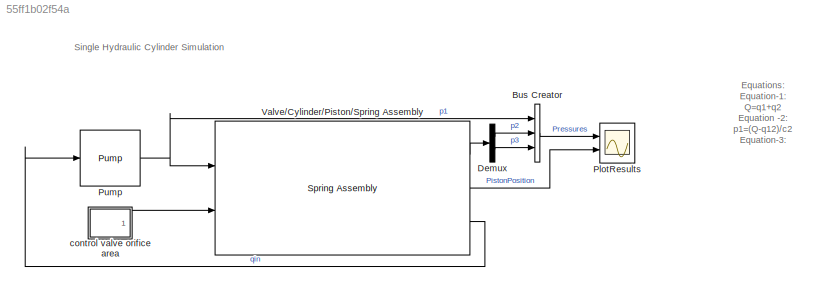
MODEL slx_55ff1b02f54a
KIND model
CONFIG AbsTol = 1e-6
CONFIG EnableMultiTasking = off
CONFIG FixedStep = auto
CONFIG MaxStep = auto
CONFIG MinStep = auto
CONFIG RelTol = 1e-4
CONFIG SampleTimeConstraint = Unconstrained
CONFIG SolverName = ode45
CONFIG StartTime = 0
CONFIG StopTime = 0.1
WORKSPACE source: MATLAB code (in-file)
WORKSPACE code: load sldemo_hydcyl_data;
BLOCK [BusCreator] Bus Creator
  DisplayOption = bar
  InheritFromInputs = on
  Inputs = 3
  Ports = [3, 1]
BLOCK [Demux] Demux
  Outputs = 2
  Ports = [1, 2]
BLOCK [Scope] PlotResults
  Floating = off
  NumInputPorts = 2
  Ports = [2]
  ScopeSpecificationString = Simulink.scopes.TimeScopeBlockCfg('CurrentConfiguration', extmgr.ConfigurationSet(extmgr.Configuration('Core','General UI',true),extmgr.Configuration('Core','Source UI',true),extmgr.Configuration('Sources','WiredSimulink',true,'DataLoggingSaveFormat','Array','DataLoggingDecimation','1','DataLoggingDecimateData',true),extmgr.Configuration('Visuals','Time Domain',true,'TimeAxisLabels','All','Seriali...<+2401ch>
BLOCK [Reference] Pump  REF=hydlib/Pump  (lib defined in mdl_a1138ae370f5)
  Ports = [1, 1]
  SourceBlock = hydlib/Pump
  SourceProductBaseCode = SL
  SourceType = Pump
BLOCK [Reference] Valve//Cylinder//Piston//Spring Assembly  REF=hydlib/Valve//Cylinder//Piston//Spring Assembly  (lib defined in mdl_a1138ae370f5)
  Ports = [2, 3]
  SourceBlock = hydlib/Valve//Cylinder//Piston//Spring Assembly
  SourceProductBaseCode = SL
  SourceType = Valve/Cylinder/Piston/Spring Assembly
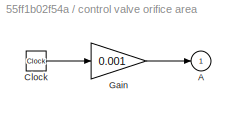
BLOCK [SubSystem] control valve orifice area
  Ports = [0, 1]
  RequestExecContextInheritance = off
  ShowPortLabels = none
BLOCK [Outport] control valve orifice area/A
  InitialOutput = 0
  VectorParamsAs1DForOutWhenUnconnected = off
BLOCK [Clock] control valve orifice area/Clock
BLOCK [Gain] control valve orifice area/Gain
  Gain = 0.001
  OutDataTypeStr = Inherit: Same as input
  ParamDataTypeStr = Inherit: Same as input
  SaturateOnIntegerOverflow = on
ANNOTATION (root): Equations: Equation-1: Q=q1+q2 Equation -2: p1=(Q-q12)/c2 Equation-3: q12=cd.A.sgn(p1-p2).(2/p|p1-p2|) Equation-4: (dp3/dpt)=B/v3(q12-Ac(dx/dt)) Equation-5: dx/dt =p3(Ac/k) Equation-6: p2=p3+q12/c1 where Q=Pump flow q12->Control valve flow qex->Leakage C2->Flow Coefficent A->area P->fluid density p3->Piston pressure K->Spring constant C1->Laminar flow coefficent
ANNOTATION (root): Single Hydraulic Cylinder Simulation
LINE Bus Creator:1 -> PlotResults:1
LINE Demux:1 -> Bus Creator:2
LINE Demux:2 -> Bus Creator:3
NET Pump:1 -> Bus Creator:1, Valve//Cylinder//Piston//Spring Assembly:1
LINE Valve//Cylinder//Piston//Spring Assembly:1 -> Demux:1
LINE Valve//Cylinder//Piston//Spring Assembly:2 -> PlotResults:2
LINE Valve//Cylinder//Piston//Spring Assembly:3 -> Pump:1
LINE control valve orifice area/Clock:1 -> control valve orifice area/Gain:1
LINE control valve orifice area/Gain:1 -> control valve orifice area/A:1
LINE control valve orifice area:1 -> Valve//Cylinder//Piston//Spring Assembly:2
note: NET lines group one-source signal fan-out (src -> all destinations, sorted); 1:1 wires keep LINE
